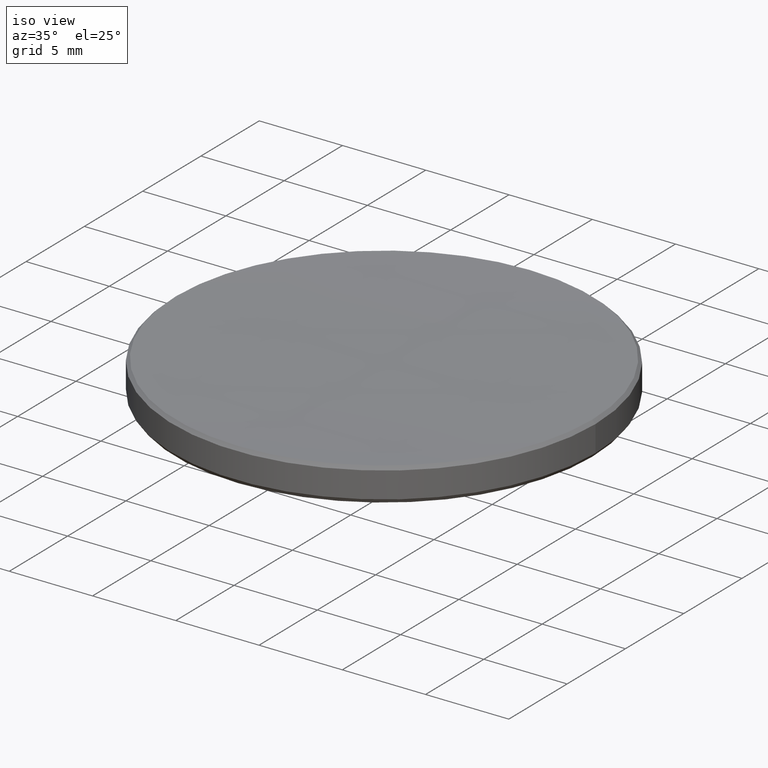
[diagram: clean part render]
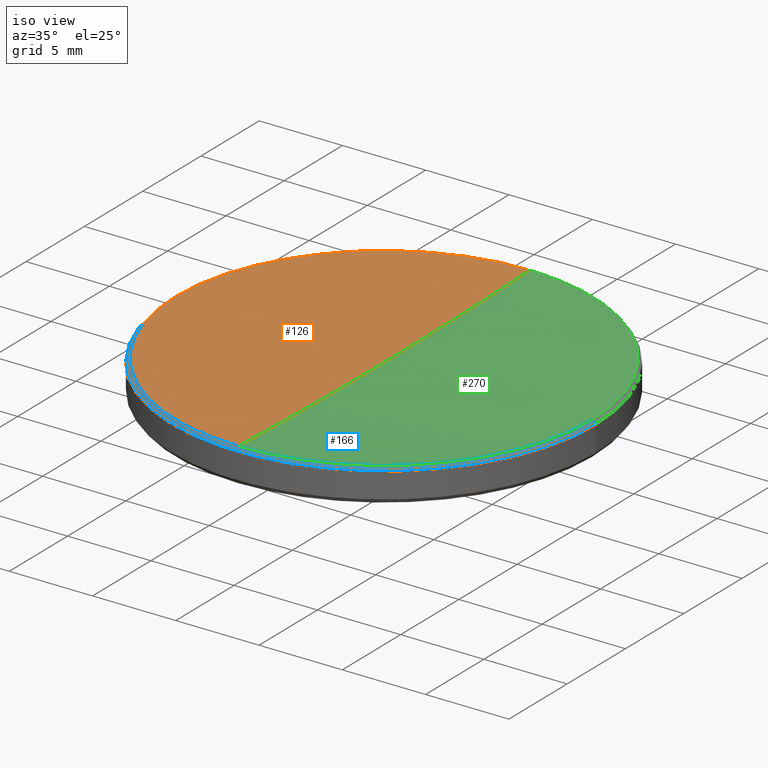
[diagram: same view with three faces highlighted in distinct colors, each labeled with its STEP entity id]
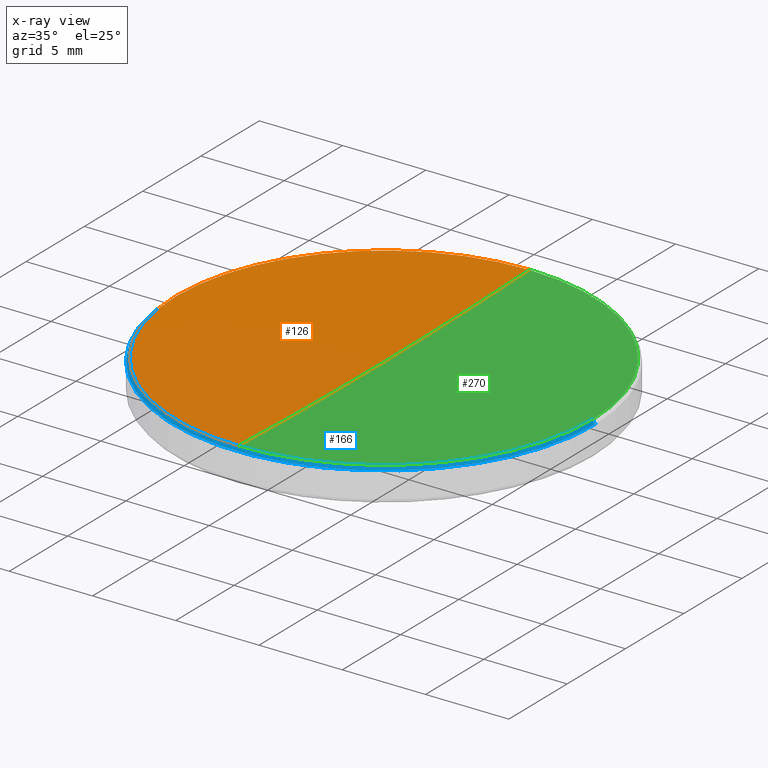
[diagram: x-ray of the same camera — body ghosted, the three highlighted faces saturated]
A machine part, iso view with three faces highlighted in distinct colors.
The next image is the same camera in x-ray (body ghosted, the three faces saturated) — at least one of them is partly hidden behind the body in this view.
Their STEP definitions:

[orange] entity #126 — the highlighted spherical surface has radius 330.58 mm.
#5 = ORIENTED_EDGE ( 'NONE', *, *, #48, .T. ) ;
#23 = DIRECTION ( 'NONE',  ( 1.000000000000000000, 0.000000000000000000, 0.000000000000000000 ) ) ;
#26 = DIRECTION ( 'NONE',  ( 0.000000000000000000, 0.000000000000000000, -1.000000000000000000 ) ) ;
#30 = DIRECTION ( 'NONE',  ( -0.000000000000000000, -0.000000000000000000, 1.000000000000000000 ) ) ;
#32 = CARTESIAN_POINT ( 'NONE',  ( 0.000000000000000000, 0.000000000000000000, 5.992649703450315002 ) ) ;
#48 = EDGE_CURVE ( 'NONE', #60, #108, #94, .T. ) ;
#51 = AXIS2_PLACEMENT_3D ( 'NONE', #275, #302, #203 ) ;
#54 = VERTEX_POINT ( 'NONE', #211 ) ;
#59 = EDGE_CURVE ( 'NONE', #60, #122, #245, .T. ) ;
#60 = VERTEX_POINT ( 'NONE', #234 ) ;
#90 = EDGE_CURVE ( 'NONE', #54, #122, #237, .T. ) ;
#92 = EDGE_CURVE ( 'NONE', #108, #54, #138, .T. ) ;
#94 = CIRCLE ( 'NONE', #198, 330.5799999999999841 ) ;
#103 = DIRECTION ( 'NONE',  ( 1.000000000000000000, 0.000000000000000000, 0.000000000000000000 ) ) ;
#104 = ORIENTED_EDGE ( 'NONE', *, *, #90, .T. ) ;
#108 = VERTEX_POINT ( 'NONE', #180 ) ;
#118 = SPHERICAL_SURFACE ( 'NONE', #176, 330.5799999999999841 ) ;
#122 = VERTEX_POINT ( 'NONE', #232 ) ;
#126 = ADVANCED_FACE ( 'NONE', ( #277 ), #118, .F. ) ;
#129 = EDGE_LOOP ( 'NONE', ( #265, #5, #291, #104 ) ) ;
#131 = AXIS2_PLACEMENT_3D ( 'NONE', #173, #258, #23 ) ;
#138 = CIRCLE ( 'NONE', #131, 12.50735029654974895 ) ;
#149 = DIRECTION ( 'NONE',  ( 0.000000000000000000, 1.000000000000000000, 0.000000000000000000 ) ) ;
#165 = CARTESIAN_POINT ( 'NONE',  ( 0.000000000000000000, 0.000000000000000000, 336.3359598953767886 ) ) ;
#173 = CARTESIAN_POINT ( 'NONE',  ( 0.000000000000000000, 0.000000000000000000, 5.992649703450315002 ) ) ;
#176 = AXIS2_PLACEMENT_3D ( 'NONE', #230, #225, #149 ) ;
#180 = CARTESIAN_POINT ( 'NONE',  ( 0.000000000000000000, 12.50735029655037422, 5.992649703450315002 ) ) ;
#198 = AXIS2_PLACEMENT_3D ( 'NONE', #165, #103, #26 ) ;
#203 = DIRECTION ( 'NONE',  ( -1.224646799147353207E-16, -1.000000000000000000, 0.000000000000000000 ) ) ;
#211 = CARTESIAN_POINT ( 'NONE',  ( -12.50735029654974895, 0.000000000000000000, 5.992649703450315002 ) ) ;
#225 = DIRECTION ( 'NONE',  ( -1.000000000000000000, 0.000000000000000000, 0.000000000000000000 ) ) ;
#228 = DIRECTION ( 'NONE',  ( 1.000000000000000000, 0.000000000000000000, 0.000000000000000000 ) ) ;
#230 = CARTESIAN_POINT ( 'NONE',  ( 0.000000000000000000, 0.000000000000000000, 336.3359598953767886 ) ) ;
#232 = CARTESIAN_POINT ( 'NONE',  ( -1.531708650648511547E-15, -12.50735029655037422, 5.992649703450315002 ) ) ;
#234 = CARTESIAN_POINT ( 'NONE',  ( 0.000000000000000000, 2.024218694310659877E-14, 5.755959895376805413 ) ) ;
#237 = CIRCLE ( 'NONE', #298, 12.50735029654974895 ) ;
#245 = CIRCLE ( 'NONE', #51, 330.5799999999999841 ) ;
#258 = DIRECTION ( 'NONE',  ( -0.000000000000000000, -0.000000000000000000, 1.000000000000000000 ) ) ;
#265 = ORIENTED_EDGE ( 'NONE', *, *, #59, .F. ) ;
#275 = CARTESIAN_POINT ( 'NONE',  ( 0.000000000000000000, 0.000000000000000000, 336.3359598953767886 ) ) ;
#277 = FACE_OUTER_BOUND ( 'NONE', #129, .T. ) ;
#291 = ORIENTED_EDGE ( 'NONE', *, *, #92, .T. ) ;
#298 = AXIS2_PLACEMENT_3D ( 'NONE', #32, #30, #228 ) ;
#302 = DIRECTION ( 'NONE',  ( -1.000000000000000000, 1.224646799147353207E-16, 0.000000000000000000 ) ) ;

[blue] entity #166 — the highlighted conical surface has half-angle 45 deg.
#16 = CONICAL_SURFACE ( 'NONE', #242, 12.50735029654975961, 0.7853981633977589194 ) ;
#29 = DIRECTION ( 'NONE',  ( 1.000000000000000000, 0.000000000000000000, 0.000000000000000000 ) ) ;
#30 = DIRECTION ( 'NONE',  ( -0.000000000000000000, -0.000000000000000000, 1.000000000000000000 ) ) ;
#31 = ORIENTED_EDGE ( 'NONE', *, *, #38, .T. ) ;
#32 = CARTESIAN_POINT ( 'NONE',  ( 0.000000000000000000, 0.000000000000000000, 5.992649703450315002 ) ) ;
#34 = CARTESIAN_POINT ( 'NONE',  ( 12.69999999999999929, 1.555301434917138433E-15, 5.800000000000138378 ) ) ;
#38 = EDGE_CURVE ( 'NONE', #54, #43, #204, .T. ) ;
#39 = AXIS2_PLACEMENT_3D ( 'NONE', #119, #143, #29 ) ;
#41 = DIRECTION ( 'NONE',  ( -1.000000000000000000, 0.000000000000000000, 0.000000000000000000 ) ) ;
#43 = VERTEX_POINT ( 'NONE', #146 ) ;
#54 = VERTEX_POINT ( 'NONE', #211 ) ;
#58 = ORIENTED_EDGE ( 'NONE', *, *, #110, .F. ) ;
#69 = EDGE_CURVE ( 'NONE', #79, #186, #71, .T. ) ;
#71 = LINE ( 'NONE', #250, #106 ) ;
#79 = VERTEX_POINT ( 'NONE', #98 ) ;
#83 = CIRCLE ( 'NONE', #88, 12.69999999999999929 ) ;
#88 = AXIS2_PLACEMENT_3D ( 'NONE', #194, #134, #115 ) ;
#89 = CIRCLE ( 'NONE', #39, 12.50735029654974895 ) ;
#90 = EDGE_CURVE ( 'NONE', #54, #122, #237, .T. ) ;
#98 = CARTESIAN_POINT ( 'NONE',  ( 12.50735029654974895, 1.543505042782786336E-15, 5.992649703450315002 ) ) ;
#106 = VECTOR ( 'NONE', #308, 1000.000000000000114 ) ;
#110 = EDGE_CURVE ( 'NONE', #122, #79, #89, .T. ) ;
#112 = FACE_OUTER_BOUND ( 'NONE', #208, .T. ) ;
#115 = DIRECTION ( 'NONE',  ( 1.000000000000000000, 0.000000000000000000, 0.000000000000000000 ) ) ;
#119 = CARTESIAN_POINT ( 'NONE',  ( 0.000000000000000000, 0.000000000000000000, 5.992649703450315002 ) ) ;
#122 = VERTEX_POINT ( 'NONE', #232 ) ;
#124 = ORIENTED_EDGE ( 'NONE', *, *, #90, .F. ) ;
#134 = DIRECTION ( 'NONE',  ( 0.000000000000000000, 0.000000000000000000, -1.000000000000000000 ) ) ;
#143 = DIRECTION ( 'NONE',  ( -0.000000000000000000, -0.000000000000000000, 1.000000000000000000 ) ) ;
#146 = CARTESIAN_POINT ( 'NONE',  ( -12.69999999999999929, 0.000000000000000000, 5.800000000000138378 ) ) ;
#166 = ADVANCED_FACE ( 'NONE', ( #112 ), #16, .T. ) ;
#170 = CARTESIAN_POINT ( 'NONE',  ( -12.50735029654975961, 0.000000000000000000, 5.992649703450259047 ) ) ;
#186 = VERTEX_POINT ( 'NONE', #34 ) ;
#194 = CARTESIAN_POINT ( 'NONE',  ( 0.000000000000000000, 0.000000000000000000, 5.800000000000138378 ) ) ;
#204 = LINE ( 'NONE', #170, #223 ) ;
#207 = EDGE_CURVE ( 'NONE', #186, #43, #83, .T. ) ;
#208 = EDGE_LOOP ( 'NONE', ( #309, #58, #124, #31, #320 ) ) ;
#211 = CARTESIAN_POINT ( 'NONE',  ( -12.50735029654974895, 0.000000000000000000, 5.992649703450315002 ) ) ;
#223 = VECTOR ( 'NONE', #278, 1000.000000000000114 ) ;
#228 = DIRECTION ( 'NONE',  ( 1.000000000000000000, 0.000000000000000000, 0.000000000000000000 ) ) ;
#232 = CARTESIAN_POINT ( 'NONE',  ( -1.531708650648511547E-15, -12.50735029655037422, 5.992649703450315002 ) ) ;
#237 = CIRCLE ( 'NONE', #298, 12.50735029654974895 ) ;
#241 = DIRECTION ( 'NONE',  ( 0.000000000000000000, 0.000000000000000000, -1.000000000000000000 ) ) ;
#242 = AXIS2_PLACEMENT_3D ( 'NONE', #319, #241, #41 ) ;
#250 = CARTESIAN_POINT ( 'NONE',  ( 12.50735029654975961, 1.531708650648435816E-15, 5.992649703450259047 ) ) ;
#278 = DIRECTION ( 'NONE',  ( -0.7071067811867671749, 0.000000000000000000, -0.7071067811863278596 ) ) ;
#298 = AXIS2_PLACEMENT_3D ( 'NONE', #32, #30, #228 ) ;
#308 = DIRECTION ( 'NONE',  ( 0.7071067811867671749, 8.659560562357622381E-17, -0.7071067811863278596 ) ) ;
#309 = ORIENTED_EDGE ( 'NONE', *, *, #69, .F. ) ;
#319 = CARTESIAN_POINT ( 'NONE',  ( 0.000000000000000000, 0.000000000000000000, 5.992649703450259047 ) ) ;
#320 = ORIENTED_EDGE ( 'NONE', *, *, #207, .F. ) ;

[green] entity #270 — the highlighted spherical surface has radius 330.58 mm.
#26 = DIRECTION ( 'NONE',  ( 0.000000000000000000, 0.000000000000000000, -1.000000000000000000 ) ) ;
#28 = CARTESIAN_POINT ( 'NONE',  ( 0.000000000000000000, 0.000000000000000000, 336.3359598953767886 ) ) ;
#29 = DIRECTION ( 'NONE',  ( 1.000000000000000000, 0.000000000000000000, 0.000000000000000000 ) ) ;
#39 = AXIS2_PLACEMENT_3D ( 'NONE', #119, #143, #29 ) ;
#48 = EDGE_CURVE ( 'NONE', #60, #108, #94, .T. ) ;
#51 = AXIS2_PLACEMENT_3D ( 'NONE', #275, #302, #203 ) ;
#55 = DIRECTION ( 'NONE',  ( 1.000000000000000000, 0.000000000000000000, 0.000000000000000000 ) ) ;
#59 = EDGE_CURVE ( 'NONE', #60, #122, #245, .T. ) ;
#60 = VERTEX_POINT ( 'NONE', #234 ) ;
#64 = AXIS2_PLACEMENT_3D ( 'NONE', #28, #229, #274 ) ;
#79 = VERTEX_POINT ( 'NONE', #98 ) ;
#80 = AXIS2_PLACEMENT_3D ( 'NONE', #151, #206, #55 ) ;
#89 = CIRCLE ( 'NONE', #39, 12.50735029654974895 ) ;
#94 = CIRCLE ( 'NONE', #198, 330.5799999999999841 ) ;
#98 = CARTESIAN_POINT ( 'NONE',  ( 12.50735029654974895, 1.543505042782786336E-15, 5.992649703450315002 ) ) ;
#103 = DIRECTION ( 'NONE',  ( 1.000000000000000000, 0.000000000000000000, 0.000000000000000000 ) ) ;
#108 = VERTEX_POINT ( 'NONE', #180 ) ;
#110 = EDGE_CURVE ( 'NONE', #122, #79, #89, .T. ) ;
#119 = CARTESIAN_POINT ( 'NONE',  ( 0.000000000000000000, 0.000000000000000000, 5.992649703450315002 ) ) ;
#122 = VERTEX_POINT ( 'NONE', #232 ) ;
#135 = EDGE_CURVE ( 'NONE', #79, #108, #294, .T. ) ;
#143 = DIRECTION ( 'NONE',  ( -0.000000000000000000, -0.000000000000000000, 1.000000000000000000 ) ) ;
#151 = CARTESIAN_POINT ( 'NONE',  ( 0.000000000000000000, 0.000000000000000000, 5.992649703450315002 ) ) ;
#165 = CARTESIAN_POINT ( 'NONE',  ( 0.000000000000000000, 0.000000000000000000, 336.3359598953767886 ) ) ;
#180 = CARTESIAN_POINT ( 'NONE',  ( 0.000000000000000000, 12.50735029655037422, 5.992649703450315002 ) ) ;
#185 = EDGE_LOOP ( 'NONE', ( #289, #286, #190, #260 ) ) ;
#190 = ORIENTED_EDGE ( 'NONE', *, *, #110, .T. ) ;
#198 = AXIS2_PLACEMENT_3D ( 'NONE', #165, #103, #26 ) ;
#203 = DIRECTION ( 'NONE',  ( -1.224646799147353207E-16, -1.000000000000000000, 0.000000000000000000 ) ) ;
#206 = DIRECTION ( 'NONE',  ( -0.000000000000000000, -0.000000000000000000, 1.000000000000000000 ) ) ;
#229 = DIRECTION ( 'NONE',  ( -1.000000000000000000, 0.000000000000000000, 0.000000000000000000 ) ) ;
#232 = CARTESIAN_POINT ( 'NONE',  ( -1.531708650648511547E-15, -12.50735029655037422, 5.992649703450315002 ) ) ;
#234 = CARTESIAN_POINT ( 'NONE',  ( 0.000000000000000000, 2.024218694310659877E-14, 5.755959895376805413 ) ) ;
#245 = CIRCLE ( 'NONE', #51, 330.5799999999999841 ) ;
#257 = SPHERICAL_SURFACE ( 'NONE', #64, 330.5799999999999841 ) ;
#260 = ORIENTED_EDGE ( 'NONE', *, *, #135, .T. ) ;
#270 = ADVANCED_FACE ( 'NONE', ( #296 ), #257, .F. ) ;
#274 = DIRECTION ( 'NONE',  ( 0.000000000000000000, 1.000000000000000000, 0.000000000000000000 ) ) ;
#275 = CARTESIAN_POINT ( 'NONE',  ( 0.000000000000000000, 0.000000000000000000, 336.3359598953767886 ) ) ;
#286 = ORIENTED_EDGE ( 'NONE', *, *, #59, .T. ) ;
#289 = ORIENTED_EDGE ( 'NONE', *, *, #48, .F. ) ;
#294 = CIRCLE ( 'NONE', #80, 12.50735029654974895 ) ;
#296 = FACE_OUTER_BOUND ( 'NONE', #185, .T. ) ;
#302 = DIRECTION ( 'NONE',  ( -1.000000000000000000, 1.224646799147353207E-16, 0.000000000000000000 ) ) ;